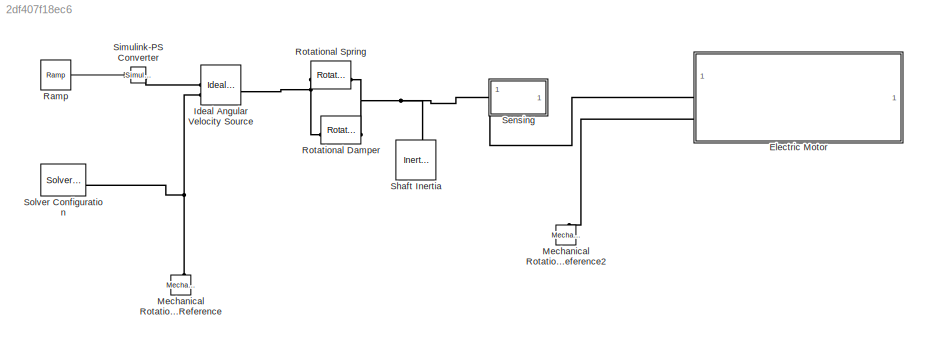
MODEL slx_2df407f18ec6
KIND model
CONFIG AbsTol = auto
CONFIG EnableMultiTasking = off
CONFIG FixedStep = auto
CONFIG MaxStep = auto
CONFIG MinStep = auto
CONFIG RelTol = 1e-3
CONFIG SampleTimeConstraint = Unconstrained
CONFIG SolverName = VariableStepAuto
CONFIG StartTime = 0.0
CONFIG StopTime = 60
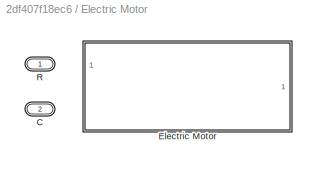
BLOCK [SubSystem] Electric Motor
  LabelModeActiveChoice = Electric Motor
  Variant = on
  VariantControl = Electric Motor
  VariantControlMode = label
BLOCK [PMIOPort] Electric Motor/C
  Port = 2
  Side = Left
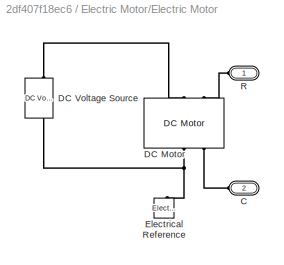
BLOCK [SubSystem] Electric Motor/Electric Motor
  TreatAsGroupedWhenPropagatingVariantConditions = off
  VariantControl = Electric Motor
BLOCK [PMIOPort] Electric Motor/Electric Motor/C
  Port = 2
  Side = Left
BLOCK [Reference] Electric Motor/Electric Motor/DC Motor  REF=ee_lib/Electromechanical/Brushed Motors/DC Motor
  NameLocation = right
  SourceBlock = ee_lib/Electromechanical/Brushed Motors/DC Motor
  SourceType = DC Motor
BLOCK [Reference] Electric Motor/Electric Motor/DC Voltage Source  REF=fl_lib/Electrical/Electrical Sources/DC Voltage Source
  NameLocation = right
  SourceBlock = fl_lib/Electrical/Electrical Sources/DC Voltage Source
  SourceType = DC Voltage Source
BLOCK [Reference] Electric Motor/Electric Motor/Electrical Reference  REF=fl_lib/Electrical/Electrical Elements/Electrical Reference
  NameLocation = right
  SourceBlock = fl_lib/Electrical/Electrical Elements/Electrical Reference
  SourceType = Electrical Reference
BLOCK [PMIOPort] Electric Motor/Electric Motor/R
  NameLocation = top
  Side = Left
BLOCK [PMIOPort] Electric Motor/R
  Side = Left
BLOCK [Reference] Ideal Angular Velocity Source  REF=fl_lib/Mechanical/Mechanical Sources/Ideal Angular
Velocity Source
  SourceBlock = fl_lib/Mechanical/Mechanical Sources/Ideal Angular\nVelocity Source
  SourceType = Ideal Angular\nVelocity Source
BLOCK [Reference] Mechanical Rotational Reference  REF=fl_lib/Mechanical/Rotational Elements/Mechanical
Rotational Reference
  NameLocation = right
  SourceBlock = fl_lib/Mechanical/Rotational Elements/Mechanical\nRotational Reference
  SourceType = Mechanical\nRotational Reference
BLOCK [Reference] Mechanical Rotational Reference2  REF=fl_lib/Mechanical/Rotational Elements/Mechanical
Rotational Reference
  NameLocation = right
  SourceBlock = fl_lib/Mechanical/Rotational Elements/Mechanical\nRotational Reference
  SourceType = Mechanical\nRotational Reference
BLOCK [Reference] Ramp  REF=simulink/Sources/Ramp
  SourceBlock = simulink/Sources/Ramp
  SourceType = Ramp
BLOCK [Reference] Rotational Damper  REF=fl_lib/Mechanical/Rotational Elements/Rotational Damper
  SourceBlock = fl_lib/Mechanical/Rotational Elements/Rotational Damper
  SourceType = Rotational Damper
BLOCK [Reference] Rotational Spring  REF=fl_lib/Mechanical/Rotational Elements/Rotational Spring
  SourceBlock = fl_lib/Mechanical/Rotational Elements/Rotational Spring
  SourceType = Rotational Spring
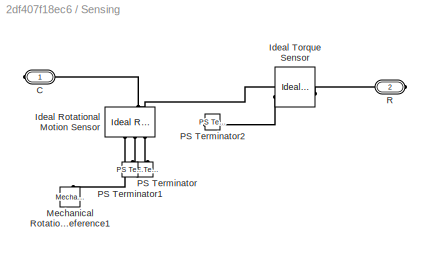
BLOCK [SubSystem] Sensing
  NameLocation = top
BLOCK [PMIOPort] Sensing/C
  Side = Right
BLOCK [Reference] Sensing/Ideal Rotational Motion Sensor  REF=fl_lib/Mechanical/Mechanical Sensors/Ideal Rotational
Motion Sensor
  NameLocation = left
  SourceBlock = fl_lib/Mechanical/Mechanical Sensors/Ideal Rotational\nMotion Sensor
  SourceType = Ideal Rotational\nMotion Sensor
BLOCK [Reference] Sensing/Ideal Torque Sensor  REF=fl_lib/Mechanical/Mechanical Sensors/Ideal Torque Sensor
  NameLocation = top
  SourceBlock = fl_lib/Mechanical/Mechanical Sensors/Ideal Torque Sensor
  SourceType = Ideal Torque Sensor
BLOCK [Reference] Sensing/Mechanical Rotational Reference1  REF=fl_lib/Mechanical/Rotational Elements/Mechanical
Rotational Reference
  NameLocation = right
  SourceBlock = fl_lib/Mechanical/Rotational Elements/Mechanical\nRotational Reference
  SourceType = Mechanical\nRotational Reference
BLOCK [Reference] Sensing/PS Terminator  REF=fl_lib/Physical Signals/Sinks/PS Terminator
  NameLocation = left
  SourceBlock = fl_lib/Physical Signals/Sinks/PS Terminator
  SourceType = PS Terminator
BLOCK [Reference] Sensing/PS Terminator1  REF=fl_lib/Physical Signals/Sinks/PS Terminator
  NameLocation = left
  SourceBlock = fl_lib/Physical Signals/Sinks/PS Terminator
  SourceType = PS Terminator
BLOCK [Reference] Sensing/PS Terminator2  REF=fl_lib/Physical Signals/Sinks/PS Terminator
  NameLocation = top
  SourceBlock = fl_lib/Physical Signals/Sinks/PS Terminator
  SourceType = PS Terminator
BLOCK [PMIOPort] Sensing/R
  Port = 2
  Side = Right
BLOCK [Reference] Shaft Inertia  REF=fl_lib/Mechanical/Rotational Elements/Inertia
  NameLocation = right
  SourceBlock = fl_lib/Mechanical/Rotational Elements/Inertia
  SourceType = Inertia
BLOCK [Reference] Simulink-PS Converter  REF=nesl_utility/Simulink-PS
Converter
  SourceBlock = nesl_utility/Simulink-PS\nConverter
  SourceType = Simulink-PS\nConverter
BLOCK [Reference] Solver Configuration  REF=nesl_utility/Solver
Configuration
  SourceBlock = nesl_utility/Solver\nConfiguration
  SourceType = Solver\nConfiguration
LINE Ramp:1 -> Simulink-PS Converter:1
PLINE Electric Motor/Electric Motor/C:RConn1 -- Electric Motor/Electric Motor/DC Motor:RConn2
PLINE Electric Motor/Electric Motor/DC Motor:LConn1 -- Electric Motor/Electric Motor/DC Voltage Source:LConn1
PLINE Electric Motor/Electric Motor/DC Motor:LConn2 -- Electric Motor/Electric Motor/R:RConn1
PNET net1: Electric Motor/Electric Motor/DC Motor:RConn1 -- Electric Motor/Electric Motor/DC Voltage Source:RConn1 -- Electric Motor/Electric Motor/Electrical Reference:LConn1
PLINE Electric Motor:LConn1 -- Sensing:RConn2
PLINE Electric Motor:LConn2 -- Mechanical Rotational Reference2:LConn1
PNET net2: Ideal Angular Velocity Source:LConn1 -- Rotational Damper:LConn1 -- Rotational Spring:LConn1
PLINE Ideal Angular Velocity Source:RConn1 -- Simulink-PS Converter:RConn1
PNET net3: Ideal Angular Velocity Source:RConn2 -- Mechanical Rotational Reference:LConn1 -- Solver Configuration:RConn1
PNET net4: Rotational Damper:RConn1 -- Rotational Spring:RConn1 -- Sensing:RConn1 -- Shaft Inertia:LConn1
PNET net5: Sensing/C:RConn1 -- Sensing/Ideal Rotational Motion Sensor:LConn1 -- Sensing/Ideal Torque Sensor:RConn1
PLINE Sensing/Ideal Rotational Motion Sensor:RConn1 -- Sensing/Mechanical Rotational Reference1:LConn1
PLINE Sensing/Ideal Rotational Motion Sensor:RConn2 -- Sensing/PS Terminator1:LConn1
PLINE Sensing/Ideal Rotational Motion Sensor:RConn3 -- Sensing/PS Terminator:LConn1
PLINE Sensing/Ideal Torque Sensor:LConn1 -- Sensing/R:RConn1
PLINE Sensing/Ideal Torque Sensor:RConn2 -- Sensing/PS Terminator2:LConn1
note: PNET lines group multi-terminal physical nets as a canonical sorted terminal list (undirected conserving connections); 2-terminal nets keep the pairwise PLINE form
